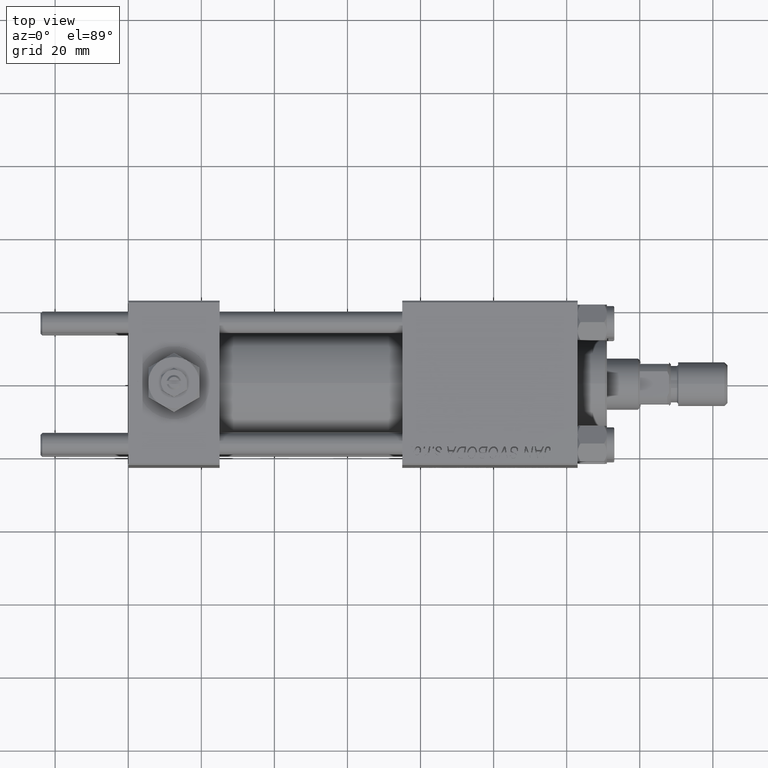
[diagram: clean part render]
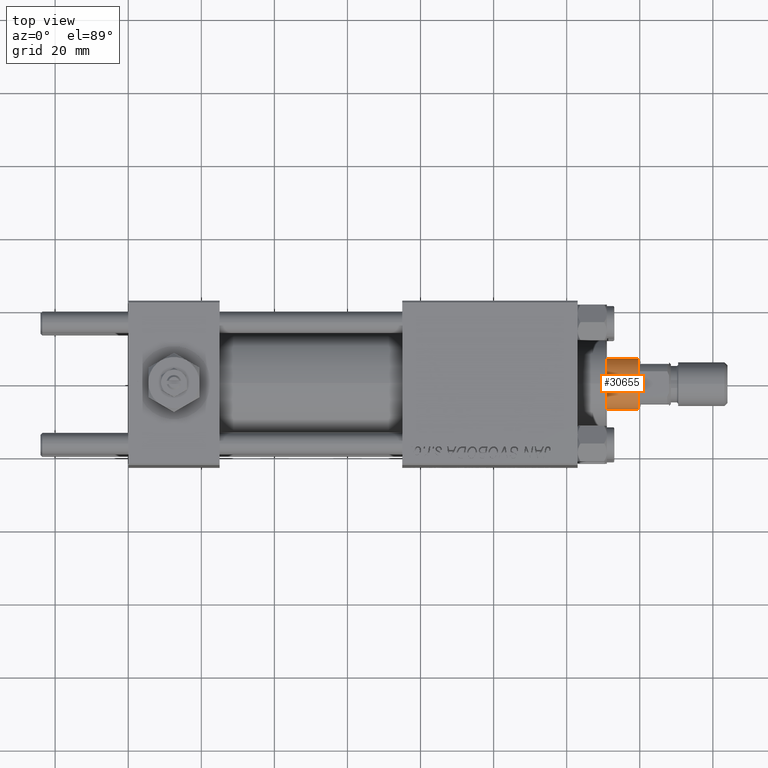
[diagram: same view with one face highlighted and labeled with its STEP entity id]
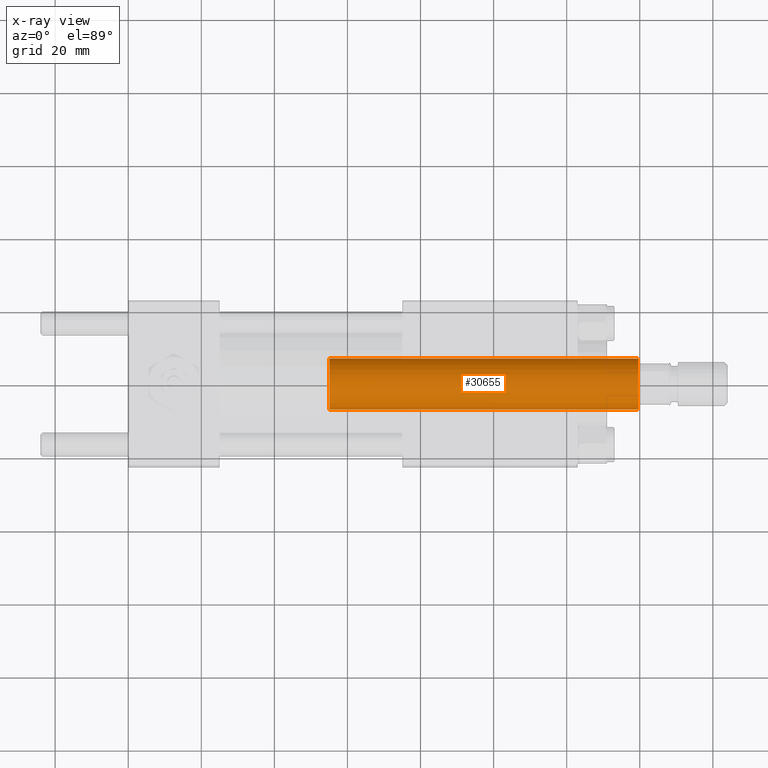
[diagram: x-ray of the same camera — body ghosted, the highlighted face saturated]
A machine part, top view. The second image highlights one B-rep face of the part: STEP entity #30655.
The next image is the same camera in x-ray: the body ghosted, the highlighted face saturated — about 1% of this face is hidden behind the body in this view.
In plain terms, the highlighted cylindrical surface (edge-blend (fillet) strip) has radius 7 mm, axis along (-1, 0, 0).
Its self-contained STEP definition (entity closure, byte-faithful):
#1079 = VECTOR ( 'NONE', #42598, 1000.000000000000000 ) ;
#2319 = CARTESIAN_POINT ( 'NONE',  ( 7.000000000000000000, 8.572527594031473190E-16, 115.0000000000000000 ) ) ;
#2518 = FACE_OUTER_BOUND ( 'NONE', #14675, .T. ) ;
#3205 = DIRECTION ( 'NONE',  ( 0.000000000000000000, 0.000000000000000000, -1.000000000000000000 ) ) ;
#4919 = CARTESIAN_POINT ( 'NONE',  ( -7.000000000000000000, 0.000000000000000000, 115.0000000000000000 ) ) ;
#6908 = CARTESIAN_POINT ( 'NONE',  ( 0.000000000000000000, 0.000000000000000000, 114.4999999999999858 ) ) ;
#7115 = EDGE_CURVE ( 'NONE', #45444, #27423, #30250, .T. ) ;
#7218 = VERTEX_POINT ( 'NONE', #19183 ) ;
#9111 = EDGE_CURVE ( 'NONE', #7218, #45089, #40979, .T. ) ;
#10498 = ORIENTED_EDGE ( 'NONE', *, *, #32379, .T. ) ;
#10541 = EDGE_CURVE ( 'NONE', #45089, #27423, #36493, .T. ) ;
#12894 = VECTOR ( 'NONE', #50725, 1000.000000000000000 ) ;
#14438 = DIRECTION ( 'NONE',  ( 1.000000000000000000, 0.000000000000000000, 0.000000000000000000 ) ) ;
#14675 = EDGE_LOOP ( 'NONE', ( #47395, #10498, #48795, #34815 ) ) ;
#14826 = CARTESIAN_POINT ( 'NONE',  ( -7.000000000000000000, 0.000000000000000000, 30.00000000000000000 ) ) ;
#19171 = DIRECTION ( 'NONE',  ( 0.000000000000000000, 0.000000000000000000, 1.000000000000000000 ) ) ;
#19183 = CARTESIAN_POINT ( 'NONE',  ( -7.000000000000000000, 0.000000000000000000, 114.4999999999999858 ) ) ;
#23071 = CYLINDRICAL_SURFACE ( 'NONE', #24360, 7.000000000000000000 ) ;
#23865 = CARTESIAN_POINT ( 'NONE',  ( 7.000000000000000000, 8.572527594031473190E-16, 30.00000000000000000 ) ) ;
#24360 = AXIS2_PLACEMENT_3D ( 'NONE', #26760, #45970, #42276 ) ;
#26760 = CARTESIAN_POINT ( 'NONE',  ( 0.000000000000000000, 0.000000000000000000, 115.0000000000000000 ) ) ;
#27423 = VERTEX_POINT ( 'NONE', #23865 ) ;
#30250 = LINE ( 'NONE', #2319, #1079 ) ;
#30655 = ADVANCED_FACE ( 'NONE', ( #2518 ), #23071, .T. ) ;
#32379 = EDGE_CURVE ( 'NONE', #45444, #7218, #45428, .T. ) ;
#34511 = AXIS2_PLACEMENT_3D ( 'NONE', #6908, #3205, #35584 ) ;
#34815 = ORIENTED_EDGE ( 'NONE', *, *, #10541, .T. ) ;
#35584 = DIRECTION ( 'NONE',  ( 1.000000000000000000, 0.000000000000000000, 0.000000000000000000 ) ) ;
#36493 = CIRCLE ( 'NONE', #45778, 7.000000000000000000 ) ;
#40979 = LINE ( 'NONE', #4919, #12894 ) ;
#41854 = CARTESIAN_POINT ( 'NONE',  ( 7.000000000000000000, 8.572527594031473190E-16, 114.4999999999999858 ) ) ;
#42276 = DIRECTION ( 'NONE',  ( -1.000000000000000000, 0.000000000000000000, 0.000000000000000000 ) ) ;
#42598 = DIRECTION ( 'NONE',  ( -0.000000000000000000, -0.000000000000000000, -1.000000000000000000 ) ) ;
#45089 = VERTEX_POINT ( 'NONE', #14826 ) ;
#45428 = CIRCLE ( 'NONE', #34511, 7.000000000000000000 ) ;
#45444 = VERTEX_POINT ( 'NONE', #41854 ) ;
#45778 = AXIS2_PLACEMENT_3D ( 'NONE', #46549, #19171, #14438 ) ;
#45970 = DIRECTION ( 'NONE',  ( -0.000000000000000000, -0.000000000000000000, -1.000000000000000000 ) ) ;
#46549 = CARTESIAN_POINT ( 'NONE',  ( 0.000000000000000000, 0.000000000000000000, 30.00000000000000000 ) ) ;
#47395 = ORIENTED_EDGE ( 'NONE', *, *, #7115, .F. ) ;
#48795 = ORIENTED_EDGE ( 'NONE', *, *, #9111, .T. ) ;
#50725 = DIRECTION ( 'NONE',  ( -0.000000000000000000, -0.000000000000000000, -1.000000000000000000 ) ) ;